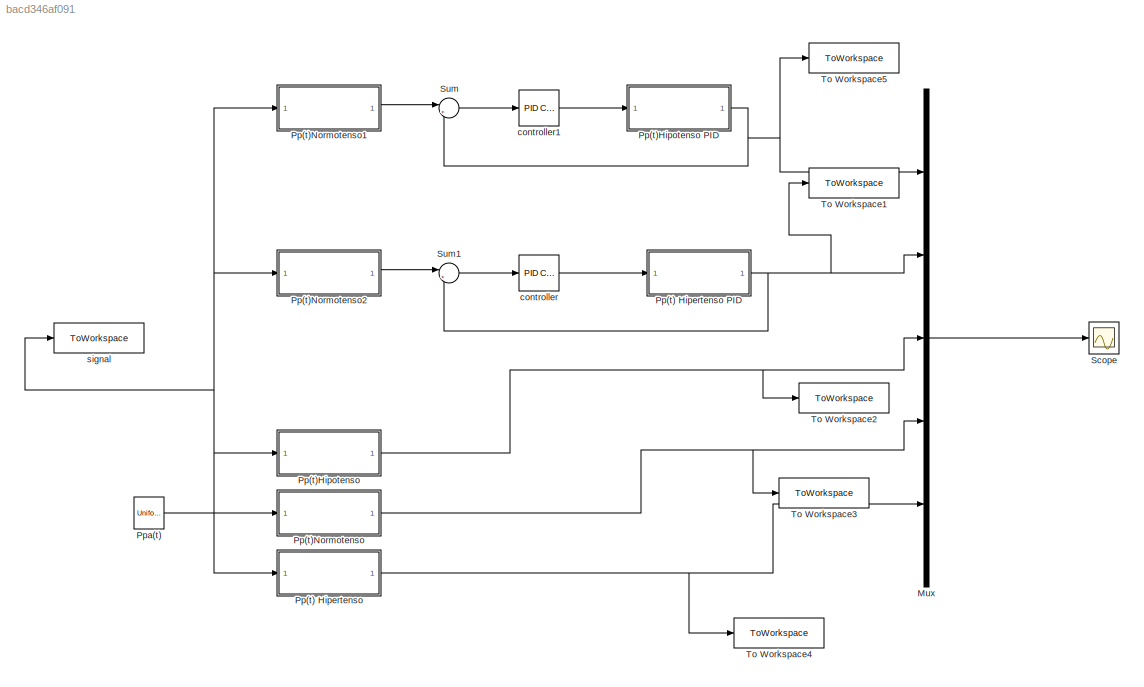
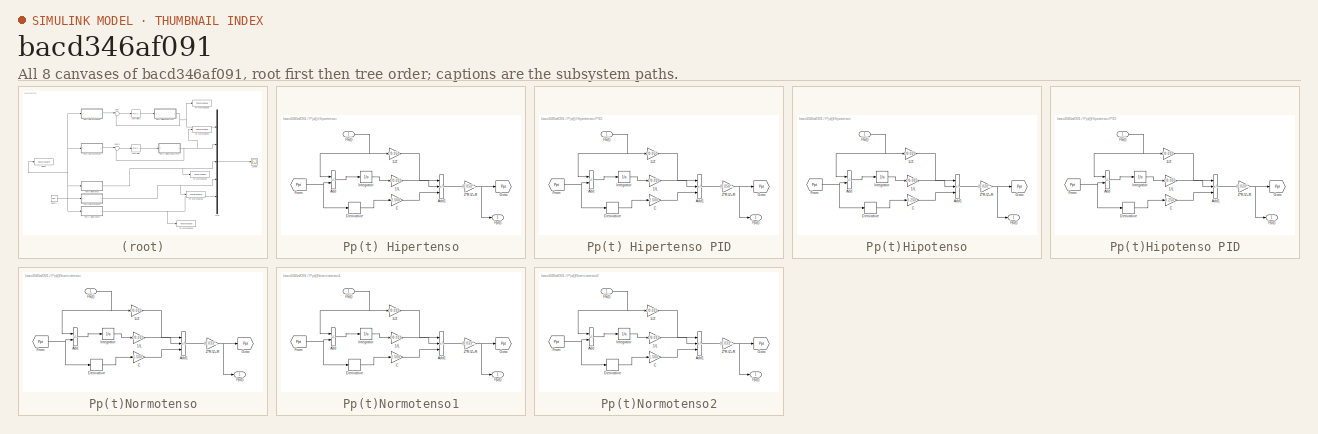
[diagram: thumbnail index - all 8 canvases of the model, root first then tree order]
MODEL slx_bacd346af091
KIND model
CONFIG AbsTol = auto
CONFIG EnableMultiTasking = off
CONFIG FixedStep = auto
CONFIG MaxStep = auto
CONFIG MinStep = auto
CONFIG RelTol = 1e-3
CONFIG SampleTimeConstraint = Unconstrained
CONFIG SolverName = VariableStepAuto
CONFIG StartTime = 0.0
CONFIG StopTime = 10.0
BLOCK [Mux] Mux
  DisplayOption = bar
  Inputs = 5
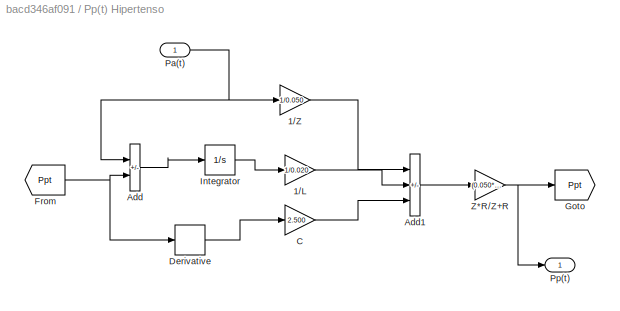
BLOCK [SubSystem] Pp(t) Hipertenso
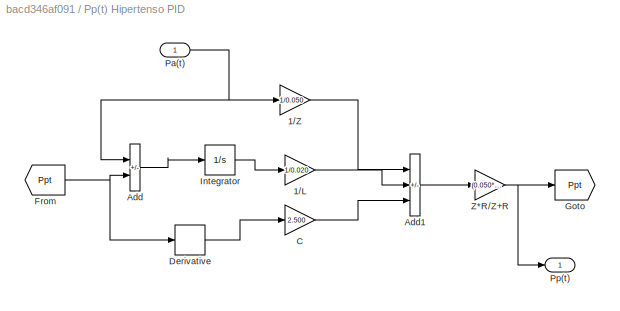
BLOCK [SubSystem] Pp(t) Hipertenso PID
BLOCK [Gain] Pp(t) Hipertenso PID/1//L
  Gain = 1/0.020
BLOCK [Gain] Pp(t) Hipertenso PID/1//Z
  Gain = 1/0.050
BLOCK [Sum] Pp(t) Hipertenso PID/Add
  IconShape = rectangular
  Inputs = +-
BLOCK [Sum] Pp(t) Hipertenso PID/Add1
  IconShape = rectangular
  Inputs = ++-
BLOCK [Gain] Pp(t) Hipertenso PID/C
  Gain = 2.500
BLOCK [Derivative] Pp(t) Hipertenso PID/Derivative
BLOCK [From] Pp(t) Hipertenso PID/From
  GotoTag = Ppt
BLOCK [Goto] Pp(t) Hipertenso PID/Goto
  GotoTag = Ppt
BLOCK [Integrator] Pp(t) Hipertenso PID/Integrator
BLOCK [Inport] Pp(t) Hipertenso PID/Pa(t)
BLOCK [Outport] Pp(t) Hipertenso PID/Pp(t)
BLOCK [Gain] Pp(t) Hipertenso PID/Z*R//Z+R
  Gain = (0.050*1.400)/(0.050+1.400)
BLOCK [Gain] Pp(t) Hipertenso/1//L
  Gain = 1/0.020
BLOCK [Gain] Pp(t) Hipertenso/1//Z
  Gain = 1/0.050
BLOCK [Sum] Pp(t) Hipertenso/Add
  IconShape = rectangular
  Inputs = +-
BLOCK [Sum] Pp(t) Hipertenso/Add1
  IconShape = rectangular
  Inputs = ++-
BLOCK [Gain] Pp(t) Hipertenso/C
  Gain = 2.500
BLOCK [Derivative] Pp(t) Hipertenso/Derivative
BLOCK [From] Pp(t) Hipertenso/From
  GotoTag = Ppt
BLOCK [Goto] Pp(t) Hipertenso/Goto
  GotoTag = Ppt
BLOCK [Integrator] Pp(t) Hipertenso/Integrator
BLOCK [Inport] Pp(t) Hipertenso/Pa(t)
BLOCK [Outport] Pp(t) Hipertenso/Pp(t)
BLOCK [Gain] Pp(t) Hipertenso/Z*R//Z+R
  Gain = (0.050*1.400)/(0.050+1.400)
BLOCK [SubSystem] Pp(t)Hipotenso
BLOCK [SubSystem] Pp(t)Hipotenso PID
BLOCK [Gain] Pp(t)Hipotenso PID/1//L
  Gain = 1/0.005
BLOCK [Gain] Pp(t)Hipotenso PID/1//Z
  Gain = 1/0.020
BLOCK [Sum] Pp(t)Hipotenso PID/Add
  IconShape = rectangular
  Inputs = +-
BLOCK [Sum] Pp(t)Hipotenso PID/Add1
  IconShape = rectangular
  Inputs = ++-
BLOCK [Gain] Pp(t)Hipotenso PID/C
  Gain = 0.250
BLOCK [Derivative] Pp(t)Hipotenso PID/Derivative
BLOCK [From] Pp(t)Hipotenso PID/From
  GotoTag = Ppt
BLOCK [Goto] Pp(t)Hipotenso PID/Goto
  GotoTag = Ppt
BLOCK [Integrator] Pp(t)Hipotenso PID/Integrator
BLOCK [Inport] Pp(t)Hipotenso PID/Pa(t)
BLOCK [Outport] Pp(t)Hipotenso PID/Pp(t)
BLOCK [Gain] Pp(t)Hipotenso PID/Z*R//Z+R
  Gain = (0.020*0.600)/(0.020+0.600)
BLOCK [Gain] Pp(t)Hipotenso/1//L
  Gain = 1/0.005
BLOCK [Gain] Pp(t)Hipotenso/1//Z
  Gain = 1/0.020
BLOCK [Sum] Pp(t)Hipotenso/Add
  IconShape = rectangular
  Inputs = +-
BLOCK [Sum] Pp(t)Hipotenso/Add1
  IconShape = rectangular
  Inputs = ++-
BLOCK [Gain] Pp(t)Hipotenso/C
  Gain = 0.250
BLOCK [Derivative] Pp(t)Hipotenso/Derivative
BLOCK [From] Pp(t)Hipotenso/From
  GotoTag = Ppt
BLOCK [Goto] Pp(t)Hipotenso/Goto
  GotoTag = Ppt
BLOCK [Integrator] Pp(t)Hipotenso/Integrator
BLOCK [Inport] Pp(t)Hipotenso/Pa(t)
BLOCK [Outport] Pp(t)Hipotenso/Pp(t)
BLOCK [Gain] Pp(t)Hipotenso/Z*R//Z+R
  Gain = (0.020*0.600)/(0.020+0.600)
BLOCK [SubSystem] Pp(t)Normotenso
BLOCK [Gain] Pp(t)Normotenso/1//L
  Gain = 1/0.010
BLOCK [Gain] Pp(t)Normotenso/1//Z
  Gain = 1/0.033
BLOCK [Sum] Pp(t)Normotenso/Add
  IconShape = rectangular
  Inputs = +-
BLOCK [Sum] Pp(t)Normotenso/Add1
  IconShape = rectangular
  Inputs = ++-
BLOCK [Gain] Pp(t)Normotenso/C
  Gain = 1.500
BLOCK [Derivative] Pp(t)Normotenso/Derivative
BLOCK [From] Pp(t)Normotenso/From
  GotoTag = Ppt
BLOCK [Goto] Pp(t)Normotenso/Goto
  GotoTag = Ppt
BLOCK [Integrator] Pp(t)Normotenso/Integrator
BLOCK [Inport] Pp(t)Normotenso/Pa(t)
BLOCK [Outport] Pp(t)Normotenso/Pp(t)
BLOCK [Gain] Pp(t)Normotenso/Z*R//Z+R
  Gain = (0.033*0.950)/(0.033+0.950)
BLOCK [SubSystem] Pp(t)Normotenso1
BLOCK [Gain] Pp(t)Normotenso1/1//L
  Gain = 1/0.010
BLOCK [Gain] Pp(t)Normotenso1/1//Z
  Gain = 1/0.033
BLOCK [Sum] Pp(t)Normotenso1/Add
  IconShape = rectangular
  Inputs = +-
BLOCK [Sum] Pp(t)Normotenso1/Add1
  IconShape = rectangular
  Inputs = ++-
BLOCK [Gain] Pp(t)Normotenso1/C
  Gain = 1.500
BLOCK [Derivative] Pp(t)Normotenso1/Derivative
BLOCK [From] Pp(t)Normotenso1/From
  GotoTag = Ppt
BLOCK [Goto] Pp(t)Normotenso1/Goto
  GotoTag = Ppt
BLOCK [Integrator] Pp(t)Normotenso1/Integrator
BLOCK [Inport] Pp(t)Normotenso1/Pa(t)
BLOCK [Outport] Pp(t)Normotenso1/Pp(t)
BLOCK [Gain] Pp(t)Normotenso1/Z*R//Z+R
  Gain = (0.033*0.950)/(0.033+0.950)
BLOCK [SubSystem] Pp(t)Normotenso2
BLOCK [Gain] Pp(t)Normotenso2/1//L
  Gain = 1/0.010
BLOCK [Gain] Pp(t)Normotenso2/1//Z
  Gain = 1/0.033
BLOCK [Sum] Pp(t)Normotenso2/Add
  IconShape = rectangular
  Inputs = +-
BLOCK [Sum] Pp(t)Normotenso2/Add1
  IconShape = rectangular
  Inputs = ++-
BLOCK [Gain] Pp(t)Normotenso2/C
  Gain = 1.500
BLOCK [Derivative] Pp(t)Normotenso2/Derivative
BLOCK [From] Pp(t)Normotenso2/From
  GotoTag = Ppt
BLOCK [Goto] Pp(t)Normotenso2/Goto
  GotoTag = Ppt
BLOCK [Integrator] Pp(t)Normotenso2/Integrator
BLOCK [Inport] Pp(t)Normotenso2/Pa(t)
BLOCK [Outport] Pp(t)Normotenso2/Pp(t)
BLOCK [Gain] Pp(t)Normotenso2/Z*R//Z+R
  Gain = (0.033*0.950)/(0.033+0.950)
BLOCK [UniformRandomNumber] Ppa(t)
  Minimum = -0.2
  SampleTime = 0.5
  Seed = 106
BLOCK [Scope] Scope
  Floating = off
  NumInputPorts = 1
  ScopeSpecificationString = Simulink.scopes.TimeScopeBlockCfg('CurrentConfiguration', extmgr.ConfigurationSet(extmgr.Configuration('Core','General UI',true),extmgr.Configuration('Core','Source UI',true),extmgr.Configuration('Sources','WiredSimulink',true),extmgr.Configuration('Visuals','Time Domain',true),extmgr.Configuration('Tools','Plot Navigation',true),extmgr.Configuration('Tools','Measurements',true)),'Version','2023a'...<+1ch>
BLOCK [Sum] Sum
  Inputs = |+-
BLOCK [Sum] Sum1
  Inputs = |+-
BLOCK [ToWorkspace] To Workspace1
  FixptAsFi = on
  MaxDataPoints = inf
  SampleTime = -1
  VariableName = Pp1
BLOCK [ToWorkspace] To Workspace2
  FixptAsFi = on
  MaxDataPoints = inf
  SampleTime = -1
  VariableName = Pp2
BLOCK [ToWorkspace] To Workspace3
  FixptAsFi = on
  MaxDataPoints = inf
  SampleTime = -1
  VariableName = Pp3
BLOCK [ToWorkspace] To Workspace4
  FixptAsFi = on
  MaxDataPoints = inf
  SampleTime = -1
  VariableName = Pp4
BLOCK [ToWorkspace] To Workspace5
  FixptAsFi = on
  MaxDataPoints = inf
  SampleTime = -1
  VariableName = Pp0
BLOCK [Reference] controller  REF=slpidlib/PID Controller
  LibrarySourceBlock = simulink/Continuous/PID Controller
  SourceBlock = slpidlib/PID Controller
  SourceType = PID 1dof
BLOCK [Reference] controller1  REF=slpidlib/PID Controller
  LibrarySourceBlock = simulink/Continuous/PID Controller
  SourceBlock = slpidlib/PID Controller
  SourceType = PID 1dof
BLOCK [ToWorkspace] signal
  FixptAsFi = on
  MaxDataPoints = inf
  SampleTime = -1
  VariableName = Ppa
LINE Mux:1 -> Scope:1
LINE Pp(t) Hipertenso PID/1//L:1 -> Pp(t) Hipertenso PID/Add1:2
LINE Pp(t) Hipertenso PID/1//Z:1 -> Pp(t) Hipertenso PID/Add1:1
LINE Pp(t) Hipertenso PID/Add1:1 -> Pp(t) Hipertenso PID/Z*R//Z+R:1
LINE Pp(t) Hipertenso PID/Add:1 -> Pp(t) Hipertenso PID/Integrator:1
LINE Pp(t) Hipertenso PID/C:1 -> Pp(t) Hipertenso PID/Add1:3
LINE Pp(t) Hipertenso PID/Derivative:1 -> Pp(t) Hipertenso PID/C:1
NET Pp(t) Hipertenso PID/From:1 -> Pp(t) Hipertenso PID/Add:2, Pp(t) Hipertenso PID/Derivative:1
LINE Pp(t) Hipertenso PID/Integrator:1 -> Pp(t) Hipertenso PID/1//L:1
NET Pp(t) Hipertenso PID/Pa(t):1 -> Pp(t) Hipertenso PID/1//Z:1, Pp(t) Hipertenso PID/Add:1
NET Pp(t) Hipertenso PID/Z*R//Z+R:1 -> Pp(t) Hipertenso PID/Goto:1, Pp(t) Hipertenso PID/Pp(t):1
NET Pp(t) Hipertenso PID:1 -> Mux:2, Sum1:2, To Workspace1:1
LINE Pp(t) Hipertenso/1//L:1 -> Pp(t) Hipertenso/Add1:2
LINE Pp(t) Hipertenso/1//Z:1 -> Pp(t) Hipertenso/Add1:1
LINE Pp(t) Hipertenso/Add1:1 -> Pp(t) Hipertenso/Z*R//Z+R:1
LINE Pp(t) Hipertenso/Add:1 -> Pp(t) Hipertenso/Integrator:1
LINE Pp(t) Hipertenso/C:1 -> Pp(t) Hipertenso/Add1:3
LINE Pp(t) Hipertenso/Derivative:1 -> Pp(t) Hipertenso/C:1
NET Pp(t) Hipertenso/From:1 -> Pp(t) Hipertenso/Add:2, Pp(t) Hipertenso/Derivative:1
LINE Pp(t) Hipertenso/Integrator:1 -> Pp(t) Hipertenso/1//L:1
NET Pp(t) Hipertenso/Pa(t):1 -> Pp(t) Hipertenso/1//Z:1, Pp(t) Hipertenso/Add:1
NET Pp(t) Hipertenso/Z*R//Z+R:1 -> Pp(t) Hipertenso/Goto:1, Pp(t) Hipertenso/Pp(t):1
NET Pp(t) Hipertenso:1 -> Mux:5, To Workspace4:1
LINE Pp(t)Hipotenso PID/1//L:1 -> Pp(t)Hipotenso PID/Add1:2
LINE Pp(t)Hipotenso PID/1//Z:1 -> Pp(t)Hipotenso PID/Add1:1
LINE Pp(t)Hipotenso PID/Add1:1 -> Pp(t)Hipotenso PID/Z*R//Z+R:1
LINE Pp(t)Hipotenso PID/Add:1 -> Pp(t)Hipotenso PID/Integrator:1
LINE Pp(t)Hipotenso PID/C:1 -> Pp(t)Hipotenso PID/Add1:3
LINE Pp(t)Hipotenso PID/Derivative:1 -> Pp(t)Hipotenso PID/C:1
NET Pp(t)Hipotenso PID/From:1 -> Pp(t)Hipotenso PID/Add:2, Pp(t)Hipotenso PID/Derivative:1
LINE Pp(t)Hipotenso PID/Integrator:1 -> Pp(t)Hipotenso PID/1//L:1
NET Pp(t)Hipotenso PID/Pa(t):1 -> Pp(t)Hipotenso PID/1//Z:1, Pp(t)Hipotenso PID/Add:1
NET Pp(t)Hipotenso PID/Z*R//Z+R:1 -> Pp(t)Hipotenso PID/Goto:1, Pp(t)Hipotenso PID/Pp(t):1
NET Pp(t)Hipotenso PID:1 -> Mux:1, Sum:2, To Workspace5:1
LINE Pp(t)Hipotenso/1//L:1 -> Pp(t)Hipotenso/Add1:2
LINE Pp(t)Hipotenso/1//Z:1 -> Pp(t)Hipotenso/Add1:1
LINE Pp(t)Hipotenso/Add1:1 -> Pp(t)Hipotenso/Z*R//Z+R:1
LINE Pp(t)Hipotenso/Add:1 -> Pp(t)Hipotenso/Integrator:1
LINE Pp(t)Hipotenso/C:1 -> Pp(t)Hipotenso/Add1:3
LINE Pp(t)Hipotenso/Derivative:1 -> Pp(t)Hipotenso/C:1
NET Pp(t)Hipotenso/From:1 -> Pp(t)Hipotenso/Add:2, Pp(t)Hipotenso/Derivative:1
LINE Pp(t)Hipotenso/Integrator:1 -> Pp(t)Hipotenso/1//L:1
NET Pp(t)Hipotenso/Pa(t):1 -> Pp(t)Hipotenso/1//Z:1, Pp(t)Hipotenso/Add:1
NET Pp(t)Hipotenso/Z*R//Z+R:1 -> Pp(t)Hipotenso/Goto:1, Pp(t)Hipotenso/Pp(t):1
NET Pp(t)Hipotenso:1 -> Mux:3, To Workspace2:1
LINE Pp(t)Normotenso/1//L:1 -> Pp(t)Normotenso/Add1:2
LINE Pp(t)Normotenso/1//Z:1 -> Pp(t)Normotenso/Add1:1
LINE Pp(t)Normotenso/Add1:1 -> Pp(t)Normotenso/Z*R//Z+R:1
LINE Pp(t)Normotenso/Add:1 -> Pp(t)Normotenso/Integrator:1
LINE Pp(t)Normotenso/C:1 -> Pp(t)Normotenso/Add1:3
LINE Pp(t)Normotenso/Derivative:1 -> Pp(t)Normotenso/C:1
NET Pp(t)Normotenso/From:1 -> Pp(t)Normotenso/Add:2, Pp(t)Normotenso/Derivative:1
LINE Pp(t)Normotenso/Integrator:1 -> Pp(t)Normotenso/1//L:1
NET Pp(t)Normotenso/Pa(t):1 -> Pp(t)Normotenso/1//Z:1, Pp(t)Normotenso/Add:1
NET Pp(t)Normotenso/Z*R//Z+R:1 -> Pp(t)Normotenso/Goto:1, Pp(t)Normotenso/Pp(t):1
LINE Pp(t)Normotenso1/1//L:1 -> Pp(t)Normotenso1/Add1:2
LINE Pp(t)Normotenso1/1//Z:1 -> Pp(t)Normotenso1/Add1:1
LINE Pp(t)Normotenso1/Add1:1 -> Pp(t)Normotenso1/Z*R//Z+R:1
LINE Pp(t)Normotenso1/Add:1 -> Pp(t)Normotenso1/Integrator:1
LINE Pp(t)Normotenso1/C:1 -> Pp(t)Normotenso1/Add1:3
LINE Pp(t)Normotenso1/Derivative:1 -> Pp(t)Normotenso1/C:1
NET Pp(t)Normotenso1/From:1 -> Pp(t)Normotenso1/Add:2, Pp(t)Normotenso1/Derivative:1
LINE Pp(t)Normotenso1/Integrator:1 -> Pp(t)Normotenso1/1//L:1
NET Pp(t)Normotenso1/Pa(t):1 -> Pp(t)Normotenso1/1//Z:1, Pp(t)Normotenso1/Add:1
NET Pp(t)Normotenso1/Z*R//Z+R:1 -> Pp(t)Normotenso1/Goto:1, Pp(t)Normotenso1/Pp(t):1
LINE Pp(t)Normotenso1:1 -> Sum:1
LINE Pp(t)Normotenso2/1//L:1 -> Pp(t)Normotenso2/Add1:2
LINE Pp(t)Normotenso2/1//Z:1 -> Pp(t)Normotenso2/Add1:1
LINE Pp(t)Normotenso2/Add1:1 -> Pp(t)Normotenso2/Z*R//Z+R:1
LINE Pp(t)Normotenso2/Add:1 -> Pp(t)Normotenso2/Integrator:1
LINE Pp(t)Normotenso2/C:1 -> Pp(t)Normotenso2/Add1:3
LINE Pp(t)Normotenso2/Derivative:1 -> Pp(t)Normotenso2/C:1
NET Pp(t)Normotenso2/From:1 -> Pp(t)Normotenso2/Add:2, Pp(t)Normotenso2/Derivative:1
LINE Pp(t)Normotenso2/Integrator:1 -> Pp(t)Normotenso2/1//L:1
NET Pp(t)Normotenso2/Pa(t):1 -> Pp(t)Normotenso2/1//Z:1, Pp(t)Normotenso2/Add:1
NET Pp(t)Normotenso2/Z*R//Z+R:1 -> Pp(t)Normotenso2/Goto:1, Pp(t)Normotenso2/Pp(t):1
LINE Pp(t)Normotenso2:1 -> Sum1:1
NET Pp(t)Normotenso:1 -> Mux:4, To Workspace3:1
NET Ppa(t):1 -> Pp(t) Hipertenso:1, Pp(t)Hipotenso:1, Pp(t)Normotenso1:1, Pp(t)Normotenso2:1, Pp(t)Normotenso:1, signal:1
LINE Sum1:1 -> controller:1
LINE Sum:1 -> controller1:1
LINE controller1:1 -> Pp(t)Hipotenso PID:1
LINE controller:1 -> Pp(t) Hipertenso PID:1
note: NET lines group one-source signal fan-out (src -> all destinations, sorted); 1:1 wires keep LINE
